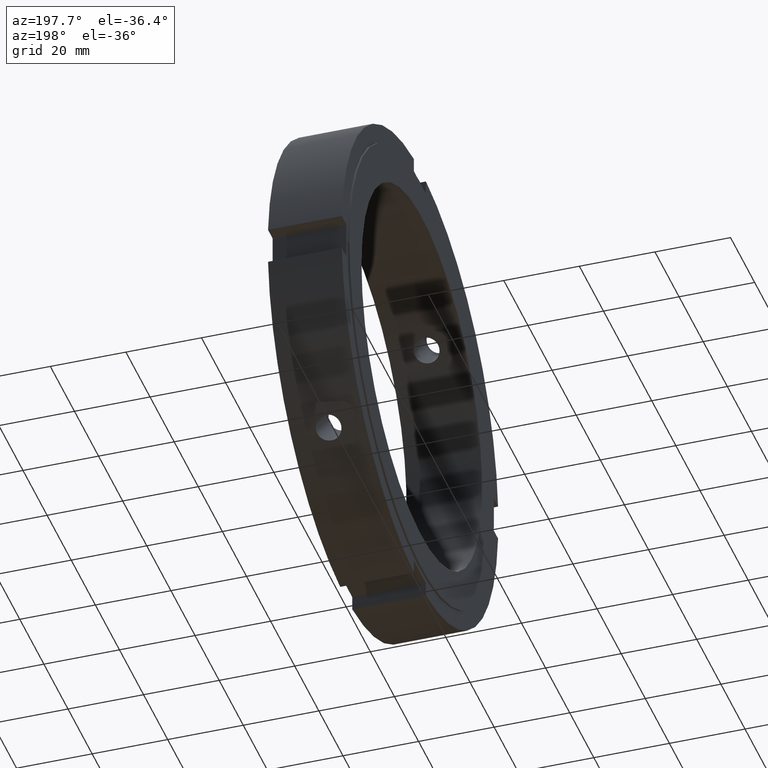
[diagram: clean part render]
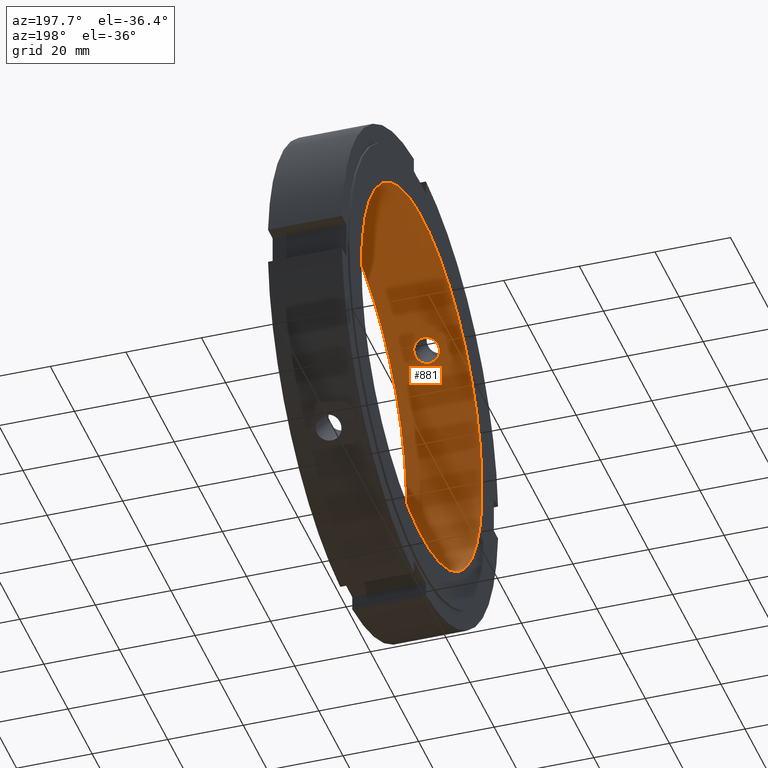
[diagram: same view with one face highlighted and labeled with its STEP entity id]
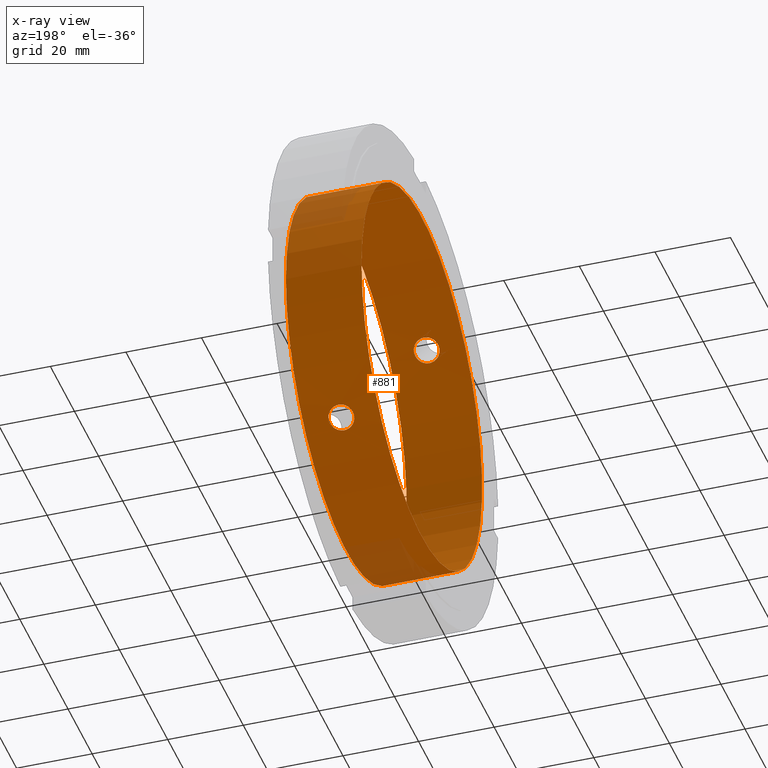
[diagram: x-ray of the same camera — body ghosted, the highlighted face saturated]
A machine part, auxiliary view. The second image highlights one B-rep face of the part: STEP entity #881.
The next image is the same camera in x-ray: the body ghosted, the highlighted face saturated — about 7% of this face is hidden behind the body in this view.
In plain terms, the highlighted cylindrical surface (bore or boss wall) has radius 50 mm, axis along (1, 0, 0).
Its self-contained STEP definition (entity closure, byte-faithful):
#114=CARTESIAN_POINT('',(9.999999999999991,-37.627217427825180,32.927078653278194));
#115=VERTEX_POINT('',#114);
#116=CARTESIAN_POINT('',(9.999999999999991,-37.627217427825158,32.927078653278215));
#117=CARTESIAN_POINT('',(10.417438254437894,-37.627217427825158,32.927078653278215));
#118=CARTESIAN_POINT('',(10.862616586855760,-37.572295147785390,32.990172971843975));
#119=CARTESIAN_POINT('',(11.681421836787383,-37.347192305491930,33.244790602828758));
#120=CARTESIAN_POINT('',(12.055059211386833,-37.176803374360425,33.436095982583474));
#121=CARTESIAN_POINT('',(12.645079368164442,-36.779227136102726,33.872934252114177));
#122=CARTESIAN_POINT('',(12.900836017585966,-36.525473688484837,34.147583970292771));
#123=CARTESIAN_POINT('',(13.240049736606592,-35.961225060110088,34.741301232840286));
#124=CARTESIAN_POINT('',(13.323499999999990,-35.650512284663485,35.060165833991263));
#125=CARTESIAN_POINT('',(13.323499999999990,-35.060165833991228,35.650512284663520));
#126=CARTESIAN_POINT('',(13.240049736606593,-34.741301232840257,35.961225060110124));
#127=CARTESIAN_POINT('',(12.900836017585970,-34.147583970292736,36.525473688484873));
#128=CARTESIAN_POINT('',(12.645079368164446,-33.872934252114142,36.779227136102755));
#129=CARTESIAN_POINT('',(12.055059211386837,-33.436095982583446,37.176803374360439));
#130=CARTESIAN_POINT('',(11.681421836787392,-33.244790602828722,37.347192305491951));
#131=CARTESIAN_POINT('',(10.862616586855767,-32.990172971843933,37.572295147785418));
#132=CARTESIAN_POINT('',(10.417438254437897,-32.927078653278180,37.627217427825187));
#133=CARTESIAN_POINT('',(9.582561745562085,-32.927078653278180,37.627217427825187));
#134=CARTESIAN_POINT('',(9.137383413144216,-32.990172971843933,37.572295147785418));
#135=CARTESIAN_POINT('',(8.318578163212592,-33.244790602828722,37.347192305491951));
#136=CARTESIAN_POINT('',(7.944940788613146,-33.436095982583446,37.176803374360439));
#137=CARTESIAN_POINT('',(7.354920631835540,-33.872934252114142,36.779227136102755));
#138=CARTESIAN_POINT('',(7.099163982414015,-34.147583970292736,36.525473688484873));
#139=CARTESIAN_POINT('',(6.759950263393390,-34.741301232840257,35.961225060110124));
#140=CARTESIAN_POINT('',(6.676499999999991,-35.060165833991228,35.650512284663520));
#141=CARTESIAN_POINT('',(6.676499999999991,-35.650512284663485,35.060165833991263));
#142=CARTESIAN_POINT('',(6.759950263393389,-35.961225060110081,34.741301232840286));
#143=CARTESIAN_POINT('',(7.099163982414014,-36.525473688484837,34.147583970292771));
#144=CARTESIAN_POINT('',(7.354920631835538,-36.779227136102726,33.872934252114177));
#145=CARTESIAN_POINT('',(7.944940788613146,-37.176803374360425,33.436095982583474));
#146=CARTESIAN_POINT('',(8.318578163212596,-37.347192305491923,33.244790602828765));
#147=CARTESIAN_POINT('',(9.137383413144219,-37.572295147785383,32.990172971843975));
#148=CARTESIAN_POINT('',(9.582561745562089,-37.627217427825158,32.927078653278222));
#149=CARTESIAN_POINT('',(9.999999999999993,-37.627217427825158,32.927078653278222));
#150=B_SPLINE_CURVE_WITH_KNOTS('',3,(#116,#117,#118,#119,#120,#121,#122,#123,#124,#125,#126,#127,#128,#129,#130,#131,#132,#133,#134,#135,#136,#137,#138,#139,#140,#141,#142,#143,#144,#145,#146,#147,#148,#149),.UNSPECIFIED.,.T.,.U.,(4,2,2,2,2,2,2,2,2,2,2,2,2,2,2,2,4),(0.0,0.125231476331371,0.250462952662742,0.375694346218671,0.500925739774601,0.626157133330529,0.751388526886458,0.876620003217829,1.001851479549200,1.127082955880572,1.252314432211943,1.377545825767871,1.502777219323800,1.628008612879729,1.753240006435658,1.878471482767029,2.003702959098400),.UNSPECIFIED.);
#151=EDGE_CURVE('',#115,#115,#150,.T.);
#202=CARTESIAN_POINT('',(9.999999999999991,32.927078653278187,-37.627217427825187));
#203=VERTEX_POINT('',#202);
#204=CARTESIAN_POINT('',(9.999999999999989,32.927078653278194,-37.627217427825187));
#205=CARTESIAN_POINT('',(9.582561745562085,32.927078653278194,-37.627217427825187));
#206=CARTESIAN_POINT('',(9.137383413144214,32.990172971843954,-37.572295147785411));
#207=CARTESIAN_POINT('',(8.318578163212591,33.244790602828743,-37.347192305491944));
#208=CARTESIAN_POINT('',(7.944940788613145,33.436095982583467,-37.176803374360425));
#209=CARTESIAN_POINT('',(7.354920631835542,33.872934252114170,-36.779227136102733));
#210=CARTESIAN_POINT('',(7.099163982414011,34.147583970292764,-36.525473688484858));
#211=CARTESIAN_POINT('',(6.759950263393391,34.741301232840279,-35.961225060110110));
#212=CARTESIAN_POINT('',(6.676499999999991,35.060165833991242,-35.650512284663506));
#213=CARTESIAN_POINT('',(6.676499999999991,35.650512284663506,-35.060165833991249));
#214=CARTESIAN_POINT('',(6.759950263393389,35.961225060110095,-34.741301232840279));
#215=CARTESIAN_POINT('',(7.099163982414005,36.525473688484837,-34.147583970292764));
#216=CARTESIAN_POINT('',(7.354920631835541,36.779227136102726,-33.872934252114177));
#217=CARTESIAN_POINT('',(7.944940788613144,37.176803374360425,-33.436095982583474));
#218=CARTESIAN_POINT('',(8.318578163212587,37.347192305491944,-33.244790602828751));
#219=CARTESIAN_POINT('',(9.137383413144214,37.572295147785411,-32.990172971843954));
#220=CARTESIAN_POINT('',(9.582561745562085,37.627217427825180,-32.927078653278208));
#221=CARTESIAN_POINT('',(10.417438254437897,37.627217427825180,-32.927078653278208));
#222=CARTESIAN_POINT('',(10.862616586855774,37.572295147785411,-32.990172971843954));
#223=CARTESIAN_POINT('',(11.681421836787395,37.347192305491944,-33.244790602828751));
#224=CARTESIAN_POINT('',(12.055059211386837,37.176803374360425,-33.436095982583474));
#225=CARTESIAN_POINT('',(12.645079368164440,36.779227136102726,-33.872934252114177));
#226=CARTESIAN_POINT('',(12.900836017585977,36.525473688484837,-34.147583970292764));
#227=CARTESIAN_POINT('',(13.240049736606597,35.961225060110095,-34.741301232840279));
#228=CARTESIAN_POINT('',(13.323499999999990,35.650512284663506,-35.060165833991249));
#229=CARTESIAN_POINT('',(13.323499999999990,35.060165833991242,-35.650512284663506));
#230=CARTESIAN_POINT('',(13.240049736606590,34.741301232840279,-35.961225060110102));
#231=CARTESIAN_POINT('',(12.900836017585970,34.147583970292764,-36.525473688484851));
#232=CARTESIAN_POINT('',(12.645079368164442,33.872934252114170,-36.779227136102733));
#233=CARTESIAN_POINT('',(12.055059211386840,33.436095982583467,-37.176803374360425));
#234=CARTESIAN_POINT('',(11.681421836787393,33.244790602828743,-37.347192305491944));
#235=CARTESIAN_POINT('',(10.862616586855768,32.990172971843954,-37.572295147785404));
#236=CARTESIAN_POINT('',(10.417438254437897,32.927078653278194,-37.627217427825187));
#237=CARTESIAN_POINT('',(9.999999999999993,32.927078653278194,-37.627217427825187));
#238=B_SPLINE_CURVE_WITH_KNOTS('',3,(#204,#205,#206,#207,#208,#209,#210,#211,#212,#213,#214,#215,#216,#217,#218,#219,#220,#221,#222,#223,#224,#225,#226,#227,#228,#229,#230,#231,#232,#233,#234,#235,#236,#237),.UNSPECIFIED.,.T.,.U.,(4,2,2,2,2,2,2,2,2,2,2,2,2,2,2,2,4),(0.0,0.125231476331371,0.250462952662743,0.375694346218671,0.500925739774599,0.626157133330527,0.751388526886455,0.876620003217827,1.001851479549198,1.127082955880570,1.252314432211941,1.377545825767869,1.502777219323797,1.628008612879725,1.753240006435653,1.878471482767024,2.003702959098396),.UNSPECIFIED.);
#239=EDGE_CURVE('',#203,#203,#238,.T.);
#712=CARTESIAN_POINT('',(19.999999999999989,50.0,0.0));
#713=VERTEX_POINT('',#712);
#714=CARTESIAN_POINT('',(19.999999999999989,0.0,0.0));
#715=DIRECTION('',(1.0,0.0,0.0));
#716=DIRECTION('',(0.0,1.0,0.0));
#717=AXIS2_PLACEMENT_3D('',#714,#715,#716);
#718=CIRCLE('',#717,50.0);
#719=EDGE_CURVE('',#713,#713,#718,.T.);
#805=CARTESIAN_POINT('',(-1.441396E-014,50.0,0.0));
#806=VERTEX_POINT('',#805);
#807=CARTESIAN_POINT('',(-1.441555E-014,0.0,0.0));
#808=DIRECTION('',(1.0,0.0,0.0));
#809=DIRECTION('',(0.0,1.0,0.0));
#810=AXIS2_PLACEMENT_3D('',#807,#808,#809);
#811=CIRCLE('',#810,50.0);
#812=EDGE_CURVE('',#806,#806,#811,.T.);
#864=CARTESIAN_POINT('',(9.999999999999988,0.0,0.0));
#865=DIRECTION('',(1.0,0.0,0.0));
#866=DIRECTION('',(0.0,1.0,0.0));
#867=AXIS2_PLACEMENT_3D('',#864,#865,#866);
#868=CYLINDRICAL_SURFACE('',#867,50.0);
#869=ORIENTED_EDGE('',*,*,#812,.F.);
#870=EDGE_LOOP('',(#869));
#871=FACE_OUTER_BOUND('',#870,.T.);
#872=ORIENTED_EDGE('',*,*,#151,.T.);
#873=EDGE_LOOP('',(#872));
#874=FACE_BOUND('',#873,.T.);
#875=ORIENTED_EDGE('',*,*,#239,.T.);
#876=EDGE_LOOP('',(#875));
#877=FACE_BOUND('',#876,.T.);
#878=ORIENTED_EDGE('',*,*,#719,.T.);
#879=EDGE_LOOP('',(#878));
#880=FACE_BOUND('',#879,.T.);
#881=ADVANCED_FACE('',(#871,#874,#877,#880),#868,.F.);